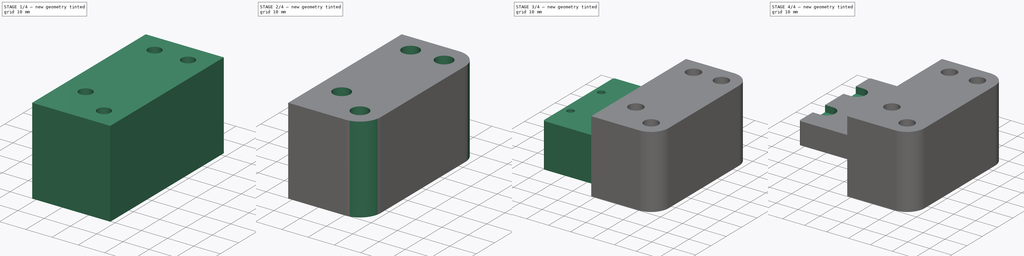
[diagram: build sequence overview — one tinted view per stage of 4, left to right]
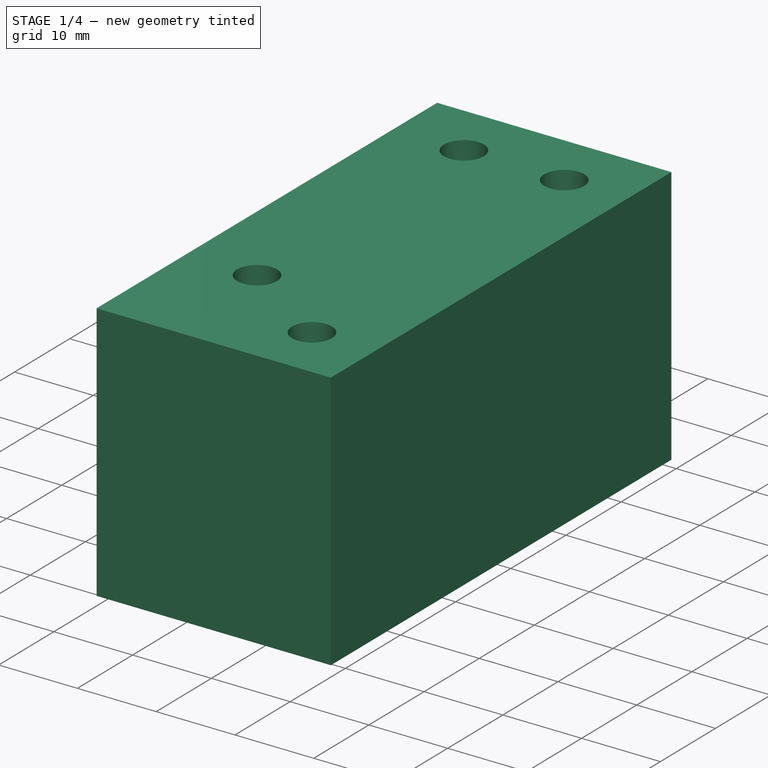
[diagram: stage 1 of 4 — iso view after this stage's code; geometry added in this stage tinted green]
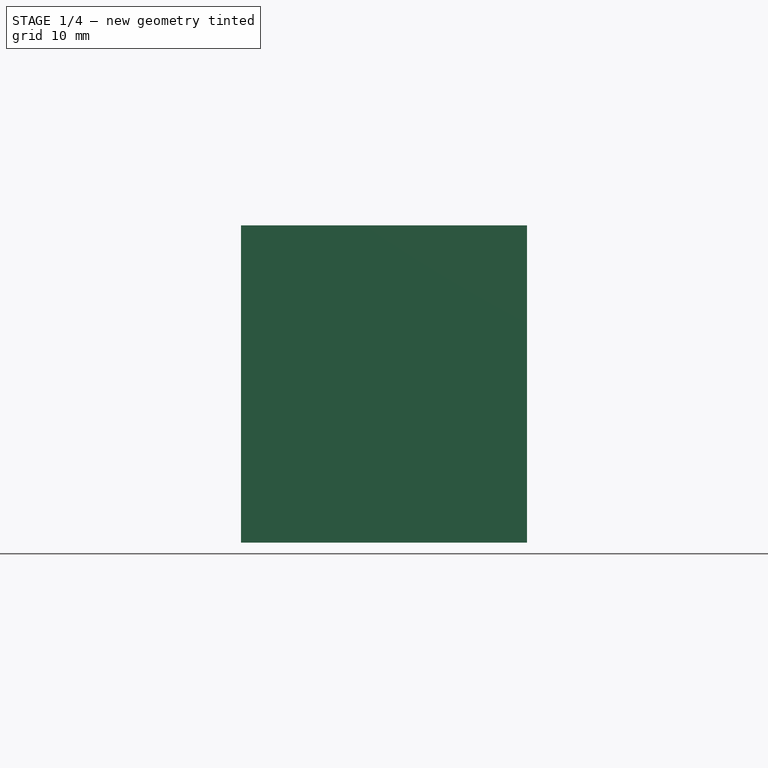
[diagram: stage 1 of 4 — front view after this stage's code; geometry added in this stage tinted green]
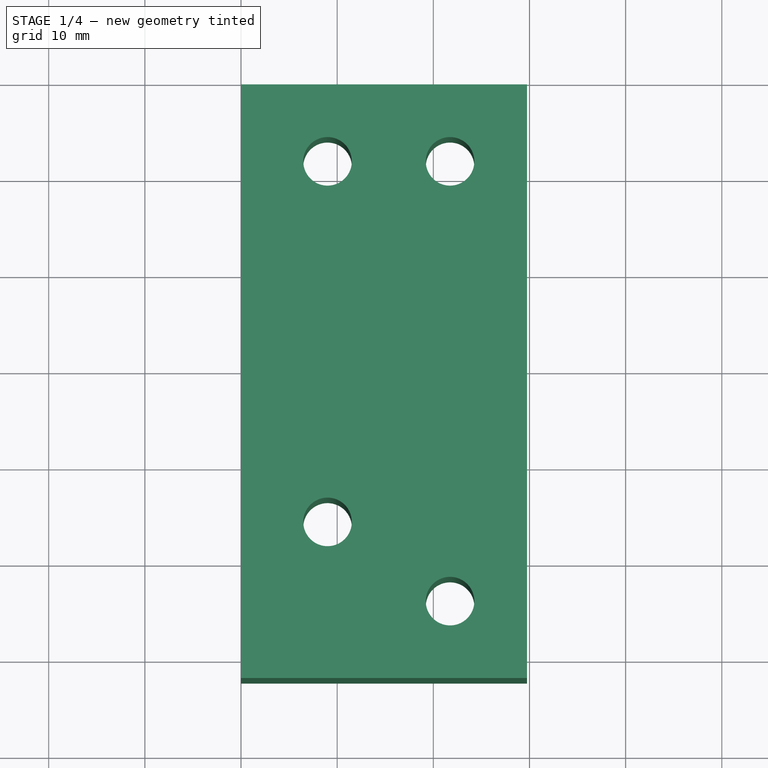
[diagram: stage 1 of 4 — top view after this stage's code; geometry added in this stage tinted green]
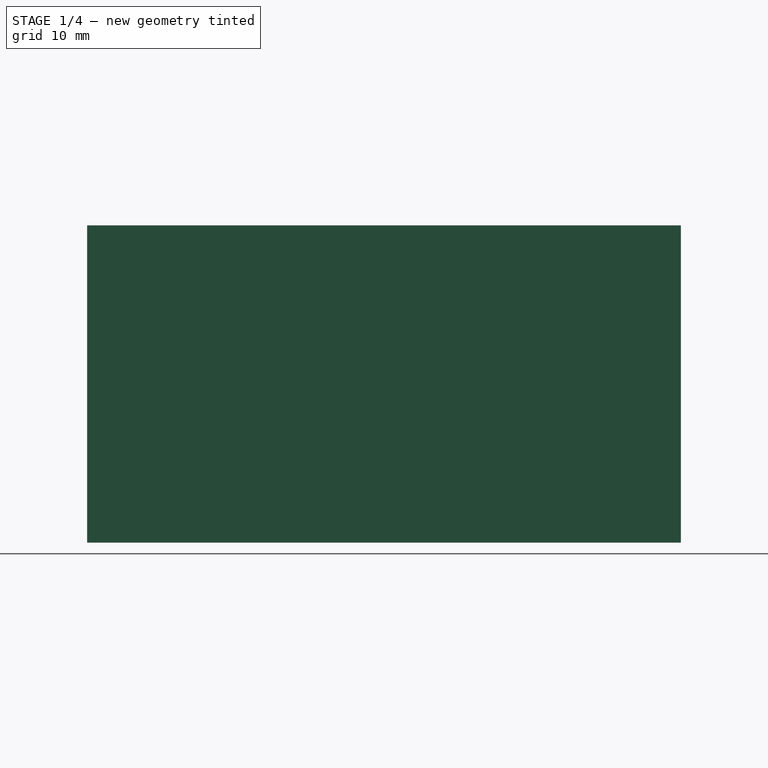
[diagram: stage 1 of 4 — right view after this stage's code; geometry added in this stage tinted green]
FCSTD DOCUMENT  (FreeCAD 0.19R24291 (Git))
Label: new-y-carrier-base
License: Other
LicenseURL: GPL3
objects: Sketcher::SketchObject×7, PartDesign::Pocket×5, PartDesign::Pad×2, PartDesign::Fillet×2, PartDesign::Body×2, Spreadsheet::Sheet×1
note: 27 computed .brp shape members not serialized (recipe doc carries the construction recipe); baked Part::Feature solids carry a one-line shape summary decoded from their .brp

FEATURE [PartDesign::Body] Body  label="block-mount-12-template"
  Group = -> [Sketch,Pad,Fillet,Sketch001,Pocket,Sketch002,Pocket001,Sketch003,Pocket002]
  Origin = -> Origin
  Placement = pos=(0,0,13) rot=(0,0,1;0rad)
  Tip = -> Pocket002
FEATURE [Sketcher::SketchObject] Sketch004
  FullyConstrained = true
  MapMode = 5
  Support = -> [XY_Plane001]
  expr: Constraints[11] = <<params>>.base_x_offset
  expr: Constraints[10] = <<params>>.base_y_offset
  expr: Constraints[8] = <<params>>.base_size_y
  expr: Constraints[9] = <<params>>.base_size_x
  sketch-geometry (4):
    g0: LineSegment StartX=0 StartY=29.5 StartZ=0 EndX=29.74 EndY=29.5 EndZ=0
    g1: LineSegment StartX=29.74 StartY=29.5 StartZ=0 EndX=29.74 EndY=-32.24 EndZ=0
    g2: LineSegment StartX=29.74 StartY=-32.24 StartZ=0 EndX=0 EndY=-32.24 EndZ=0
    g3: LineSegment StartX=0 StartY=-32.24 StartZ=0 EndX=0 EndY=29.5 EndZ=0
  constraints (12):
    c: Coincident(g0,g1)
    c: Coincident(g1,g2)
    c: Coincident(g2,g3)
    c: Coincident(g3,g0)
    c: Horizontal(g0)
    c: Horizontal(g2)
    c: Vertical(g1)
    c: Vertical(g3)
    c: DistanceY(g1,g1) = 61.74
    c: DistanceX(g0,g0) = 29.74
    c: DistanceY(g2,g-1) = 32.24
    c: DistanceX(g-1,g2) = 0
FEATURE [PartDesign::Pad] Pad001
  Direction = (1,1,1)
  Length = 33
  Length2 = 100
  Profile = -> Sketch004
  Type = 0
FEATURE [Sketcher::SketchObject] Sketch005
  FullyConstrained = true
  MapMode = 5
  Placement = pos=(0,0,33) rot=(0,0,1;0rad)
  Support = -> [Pad001]
  expr: Constraints[11] = <<params>>.back_x_offset
  expr: Constraints[1] = <<params>>.m5_hole_small
  expr: Constraints[7] = <<params>>.m5_hole_small
  expr: Constraints[0] = <<params>>.m5_hole_small
  expr: Constraints[6] = <<params>>.m5_hole_small
  expr: Constraints[9] = <<params>>.front_x_offset
  expr: Constraints[8] = <<params>>.back_y_offset
  expr: Constraints[3] = <<params>>.front_x_offset
  expr: Constraints[4] = <<params>>.back_y_offset
  expr: Constraints[10] = <<params>>.body_screw_y_offset
  expr: Constraints[5] = <<params>>.front_y_offset
  expr: Constraints[2] = <<params>>.back_x_offset
  sketch-geometry (4):
    g0: Circle CenterX=9 CenterY=21.5 CenterZ=0 NormalX=0 NormalY=0 NormalZ=1 AngleXU=0 Radius=2.525
    g1: Circle CenterX=21.74 CenterY=-24.24 CenterZ=0 NormalX=0 NormalY=0 NormalZ=1 AngleXU=0 Radius=2.525
    g2: Circle CenterX=21.74 CenterY=21.5 CenterZ=0 NormalX=0 NormalY=0 NormalZ=1 AngleXU=0 Radius=2.525
    g3: Circle CenterX=9 CenterY=-16 CenterZ=0 NormalX=0 NormalY=0 NormalZ=1 AngleXU=0 Radius=2.525
  constraints (12):
    c: Radius(g0) = 2.525
    c: Radius(g1) = 2.525
    c: DistanceX(g-1,g0) = 9
    c: DistanceX(g-1,g1) = 21.74
    c: DistanceY(g-1,g0) = 21.5
    c: DistanceY(g1,g-1) = 24.24
    c: Radius(g2) = 2.525
    c: Radius(g3) = 2.525
    c: DistanceY(g-1,g2) = 21.5
    c: DistanceX(g-1,g2) = 21.74
    c: DistanceY(g3,g-1) = 16
    c: DistanceX(g-1,g3) = 9
FEATURE [PartDesign::Pocket] Pocket003
  BaseFeature = -> Pad001
  Length = 5
  Length2 = 100
  Profile = -> Sketch005
  Type = 1
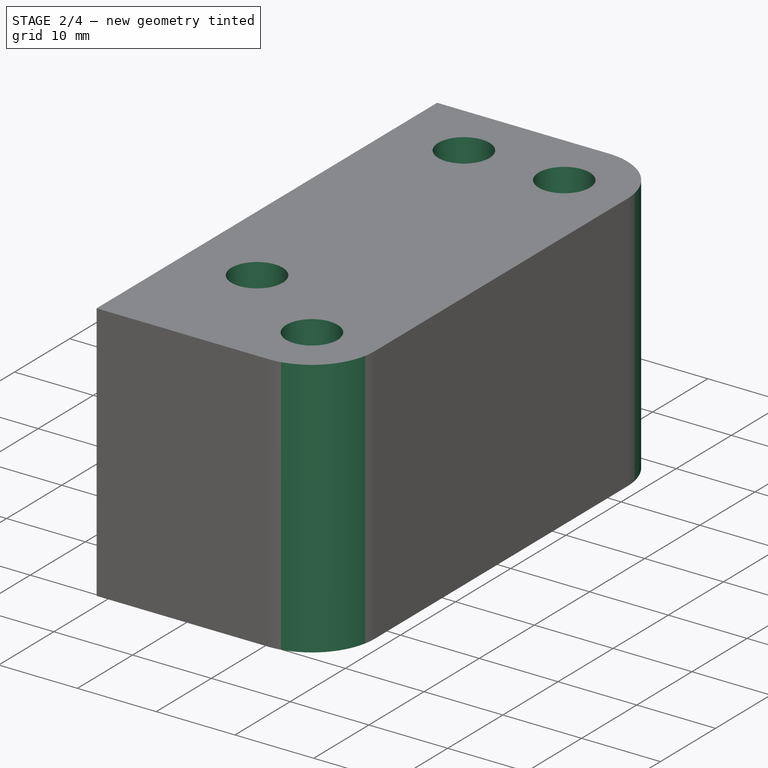
[diagram: stage 2 of 4 — iso view after this stage's code; geometry added in this stage tinted green]
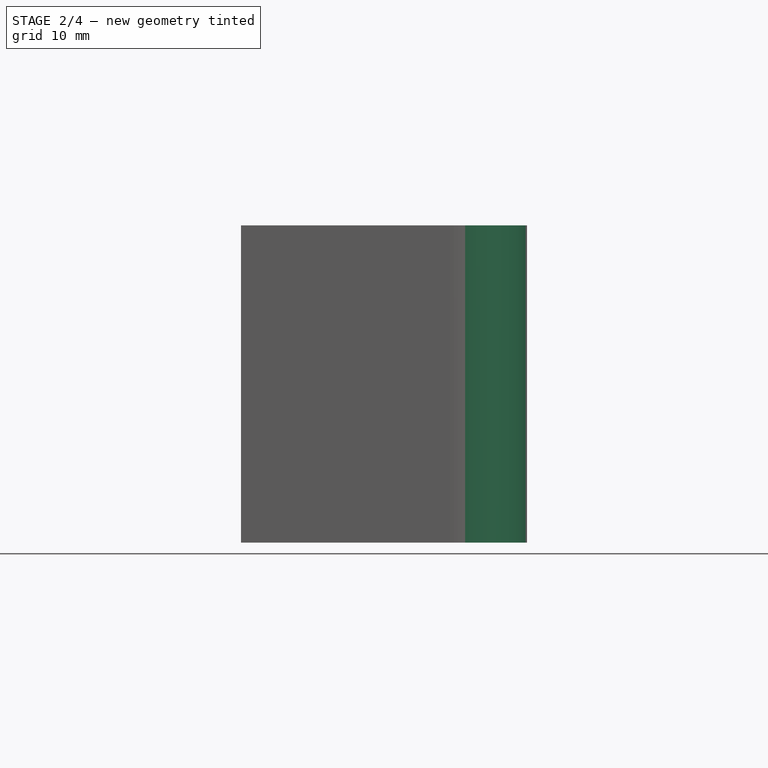
[diagram: stage 2 of 4 — front view after this stage's code; geometry added in this stage tinted green]
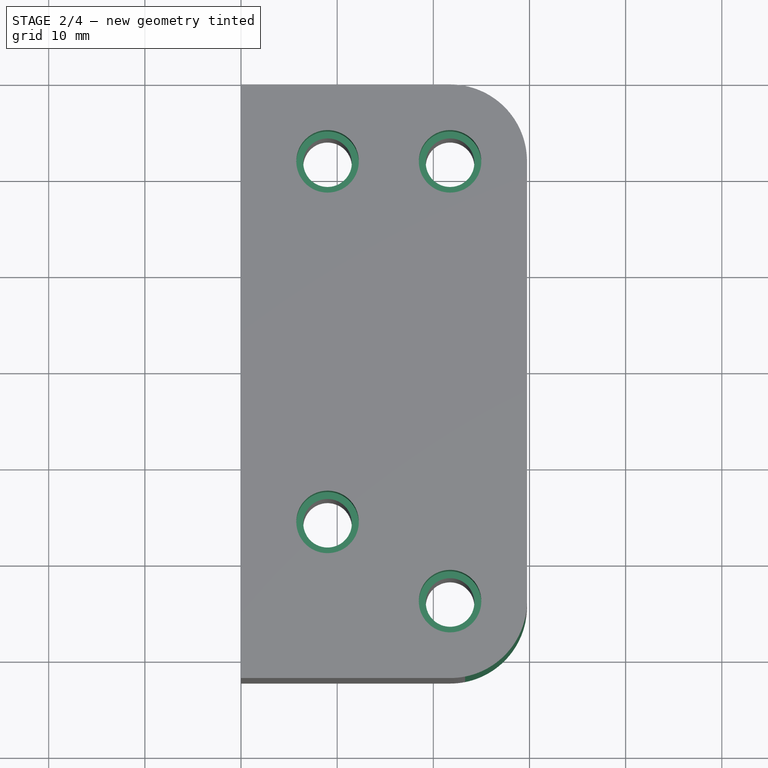
[diagram: stage 2 of 4 — top view after this stage's code; geometry added in this stage tinted green]
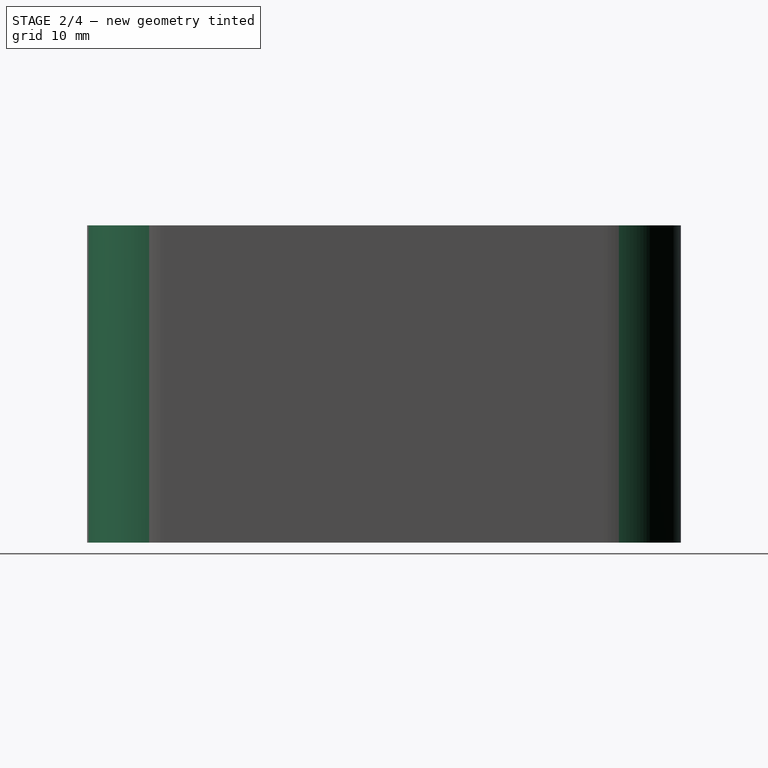
[diagram: stage 2 of 4 — right view after this stage's code; geometry added in this stage tinted green]
FEATURE [Spreadsheet::Sheet] Spreadsheet  label="params"
  cells = A1=Front idler x offset; B1(front_x_offset)=21.74; A2=Front idler y offset; B2(front_y_offset)=24.24; A3=Back idler x offset; B3(back_x_offset)=9; A4=Back idelr y offset; B4(back_y_offset)=21.5; A5=Base size x; B5(base_size_x)=29.74; A6=Base size Y; B6(base_size_y)=61.74; A7=Base x offset; B7(base_x_offset)=0; A8=Base y offset; B8(base_y_offset)=32.24; A9=M5 hole large; B9(m5_hole_large)=2.6; A10=M5 hole small; B10(m5_hole_small)=2.525; A11=M3 hole large; B11(m3_hole_large)=1.6; A12=M3 hole small; B12(m3_hole_small)=1.45; A13=M5 insert; B13(m5_insert)=3.25; A14=M3 insert; B14(m3_insert)=1.9; A15=idler clearance; B15(idler_clearance)=8; A16=body screw y offset; B16(body_screw_y_offset)=16
FEATURE [Sketcher::SketchObject] Sketch006
  FullyConstrained = true
  MapMode = 5
  Placement = pos=(0,0,33) rot=(0,0,1;0rad)
  Support = -> [Pocket003]
  expr: Constraints[11] = <<params>>.body_screw_y_offset
  expr: Constraints[9] = <<params>>.back_y_offset
  expr: Constraints[8] = <<params>>.back_y_offset
  expr: Constraints[7] = <<params>>.front_x_offset
  expr: Constraints[6] = <<params>>.front_x_offset
  expr: Constraints[4] = <<params>>.back_x_offset
  expr: Constraints[3] = <<params>>.m5_insert
  expr: Constraints[10] = <<params>>.front_y_offset
  expr: Constraints[5] = <<params>>.back_x_offset
  expr: Constraints[2] = <<params>>.m5_insert
  expr: Constraints[1] = <<params>>.m5_insert
  expr: Constraints[0] = <<params>>.m5_insert
  sketch-geometry (4):
    g0: Circle CenterX=21.74 CenterY=21.5 CenterZ=0 NormalX=0 NormalY=0 NormalZ=1 AngleXU=0 Radius=3.25
    g1: Circle CenterX=9 CenterY=21.5 CenterZ=0 NormalX=0 NormalY=0 NormalZ=1 AngleXU=0 Radius=3.25
    g2: Circle CenterX=9 CenterY=-16 CenterZ=0 NormalX=0 NormalY=0 NormalZ=1 AngleXU=0 Radius=3.25
    g3: Circle CenterX=21.74 CenterY=-24.24 CenterZ=0 NormalX=0 NormalY=0 NormalZ=1 AngleXU=0 Radius=3.25
  constraints (12):
    c: Radius(g1) = 3.25
    c: Radius(g0) = 3.25
    c: Radius(g2) = 3.25
    c: Radius(g3) = 3.25
    c: DistanceX(g-1,g1) = 9
    c: DistanceX(g-1,g2) = 9
    c: DistanceX(g-1,g3) = 21.74
    c: DistanceX(g-1,g0) = 21.74
    c: DistanceY(g-1,g1) = 21.5
    c: DistanceY(g-1,g0) = 21.5
    c: DistanceY(g3,g-1) = 24.24
    c: DistanceY(g2,g-1) = 16
FEATURE [PartDesign::Pocket] Pocket004
  BaseFeature = -> Pocket003
  Length = 8
  Length2 = 100
  Profile = -> Sketch006
  Type = 0
FEATURE [PartDesign::Fillet] Fillet001
  Base = -> Pocket004 [Edge8,Edge2]
  BaseFeature = -> Pocket004
  Radius = 8
  SupportTransform = false
  expr: Radius = <<params>>.idler_clearance
FEATURE [PartDesign::Body] Body001  label="body-template"
  Group = -> [Sketch004,Pad001,Sketch005,Pocket003,Sketch006,Pocket004,Fillet001]
  Origin = -> Origin001
  Tip = -> Fillet001
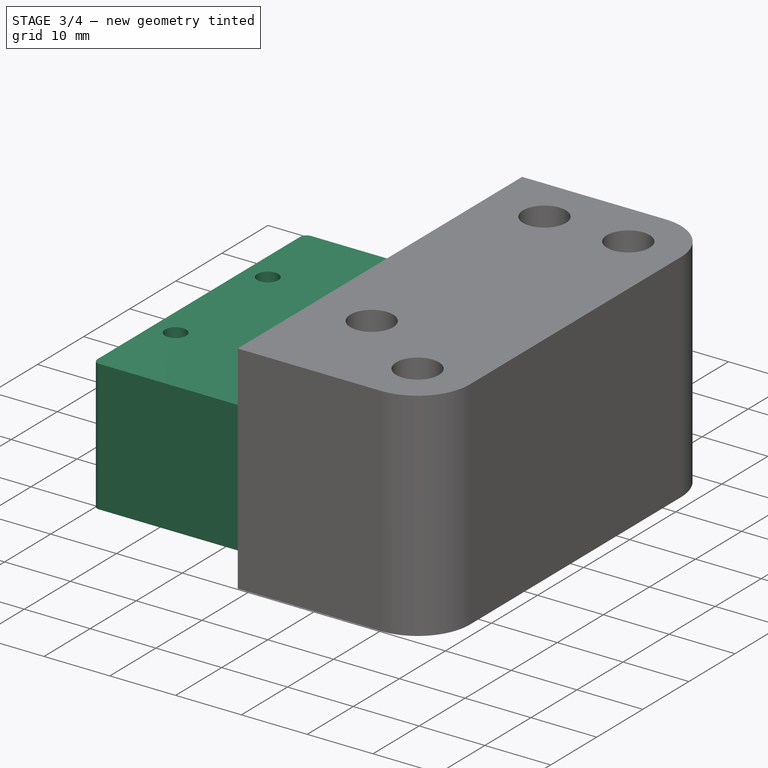
[diagram: stage 3 of 4 — iso view after this stage's code; geometry added in this stage tinted green]
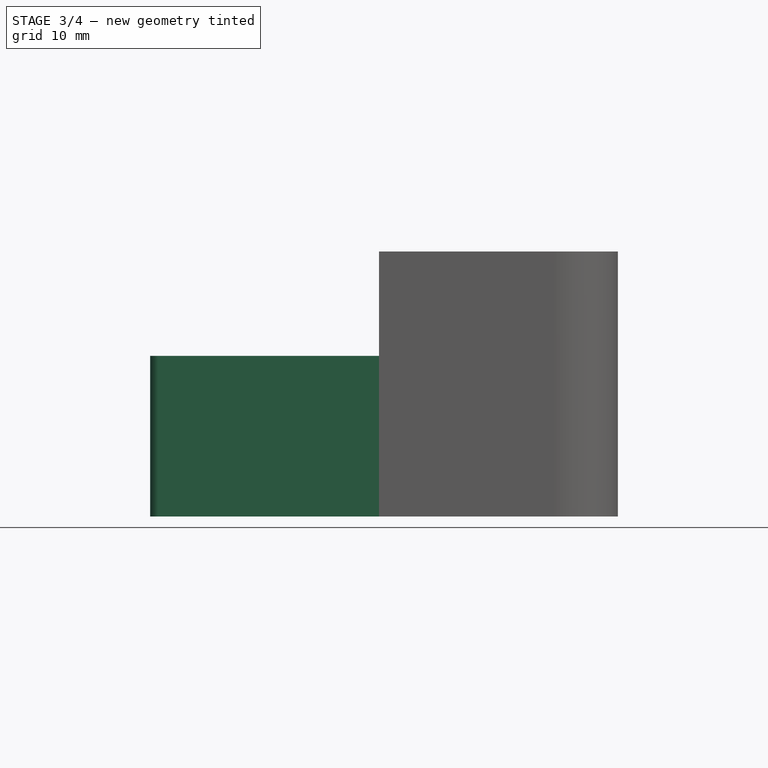
[diagram: stage 3 of 4 — front view after this stage's code; geometry added in this stage tinted green]
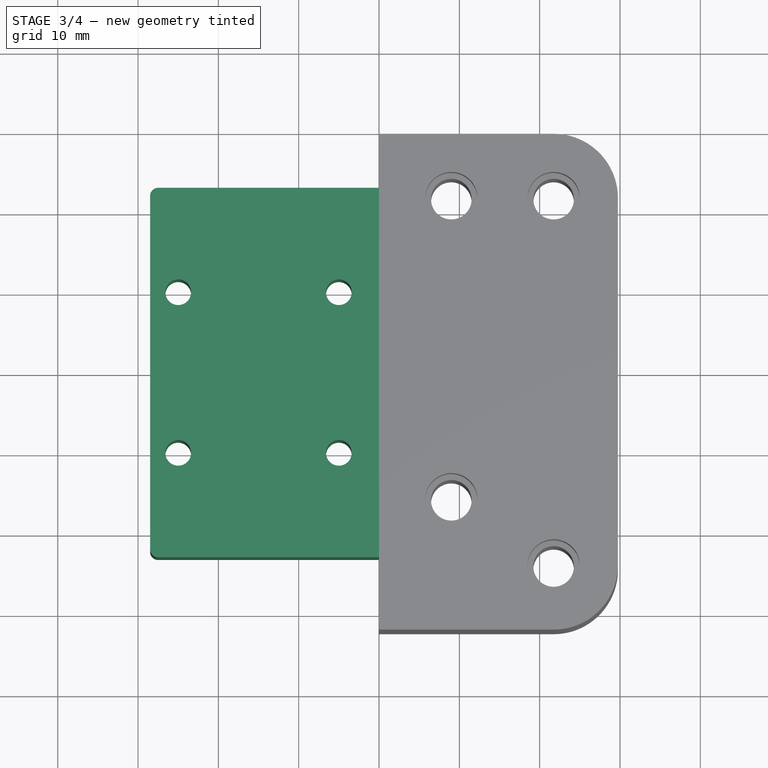
[diagram: stage 3 of 4 — top view after this stage's code; geometry added in this stage tinted green]
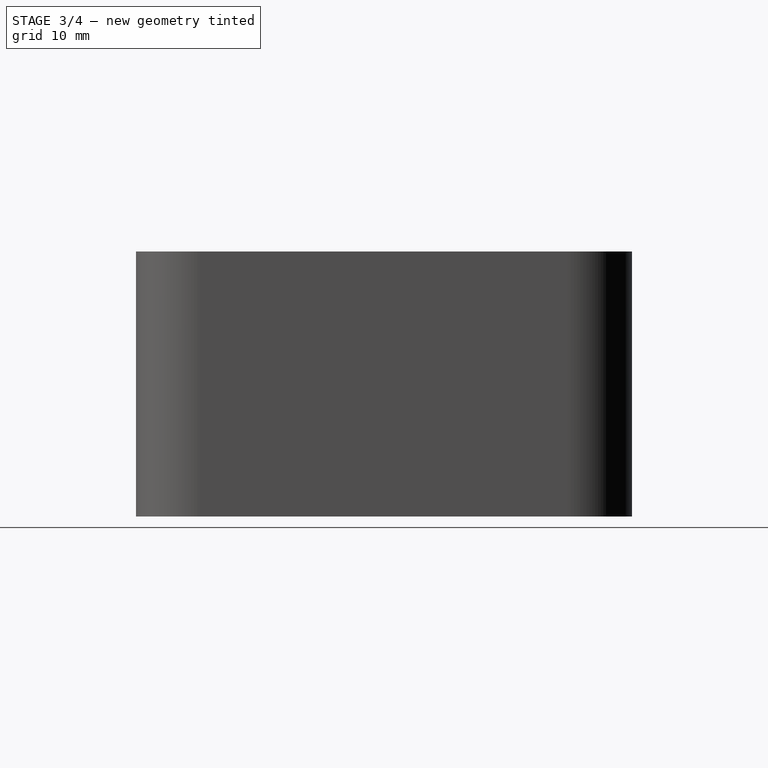
[diagram: stage 3 of 4 — right view after this stage's code; geometry added in this stage tinted green]
FEATURE [Sketcher::SketchObject] Sketch
  FullyConstrained = true
  MapMode = 5
  Support = -> [XY_Plane]
  sketch-geometry (5):
    g0: GeomPoint X=-15 Y=0 Z=0
    g1: LineSegment StartX=-28.5 StartY=23 StartZ=0 EndX=0 EndY=23 EndZ=0
    g2: LineSegment StartX=0 StartY=23 StartZ=0 EndX=0 EndY=-23 EndZ=0
    g3: LineSegment StartX=0 StartY=-23 StartZ=0 EndX=-28.5 EndY=-23 EndZ=0
    g4: LineSegment StartX=-28.5 StartY=-23 StartZ=0 EndX=-28.5 EndY=23 EndZ=0
  constraints (14):
    c: PointOnObject(g0,g-1)
    c: DistanceX(g0,g-1) = 15
    c: Coincident(g1,g2)
    c: Coincident(g2,g3)
    c: Coincident(g3,g4)
    c: Coincident(g4,g1)
    c: Horizontal(g1)
    c: Horizontal(g3)
    c: Vertical(g2)
    c: Vertical(g4)
    c: DistanceX(g1,g0) = 13.5
    c: DistanceY(g4,g4) = 46
    c: DistanceY(g0,g1) = 23
    c: DistanceX(g1,g1) = 28.5
FEATURE [PartDesign::Pad] Pad
  Direction = (1,1,1)
  Length = 20
  Length2 = 100
  Profile = -> Sketch
  Type = 0
FEATURE [PartDesign::Fillet] Fillet
  Base = -> Pad [Edge1,Edge8]
  BaseFeature = -> Pad
  Radius = 1
  SupportTransform = false
FEATURE [Sketcher::SketchObject] Sketch001
  FullyConstrained = true
  MapMode = 5
  Placement = pos=(0,0,20) rot=(0,0,1;0rad)
  Support = -> [Fillet]
  sketch-geometry (5):
    g0: GeomPoint X=-15 Y=0 Z=0
    g1: Circle CenterX=-25 CenterY=10 CenterZ=0 NormalX=0 NormalY=0 NormalZ=1 AngleXU=0 Radius=1.6
    g2: Circle CenterX=-5 CenterY=10 CenterZ=0 NormalX=0 NormalY=0 NormalZ=1 AngleXU=0 Radius=1.6
    g3: Circle CenterX=-25 CenterY=-10 CenterZ=0 NormalX=0 NormalY=0 NormalZ=1 AngleXU=0 Radius=1.6
    g4: Circle CenterX=-5 CenterY=-10 CenterZ=0 NormalX=0 NormalY=0 NormalZ=1 AngleXU=0 Radius=1.6
  constraints (14):
    c: DistanceX(g0,g-1) = 15
    c: DistanceY(g-1,g0) = 0
    c: DistanceY(g4,g2) = 20
    c: DistanceY(g3,g1) = 20
    c: DistanceX(g2,g4) = 0
    c: DistanceX(g1,g3) = 0
    c: DistanceY(g0,g2) = 10
    c: DistanceY(g0,g1) = 10
    c: DistanceX(g1,g0) = 10
    c: DistanceX(g0,g2) = 10
    c: Radius(g1) = 1.6
    c: Radius(g2) = 1.6
    c: Radius(g3) = 1.6
    c: Radius(g4) = 1.6
FEATURE [PartDesign::Pocket] Pocket
  BaseFeature = -> Fillet
  Length = 5
  Length2 = 100
  Profile = -> Sketch001
  Type = 1
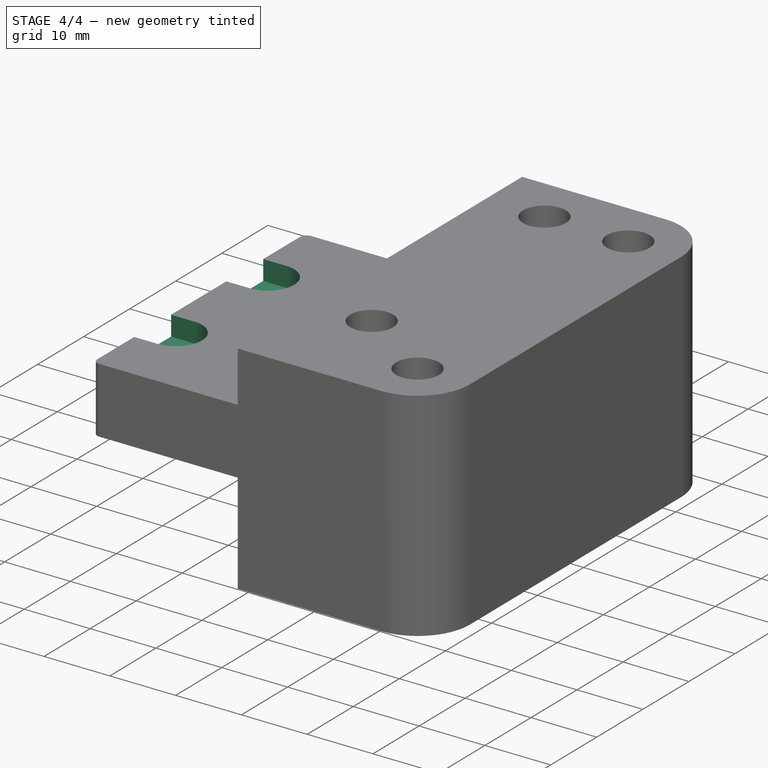
[diagram: stage 4 of 4 — iso view after this stage's code; geometry added in this stage tinted green]
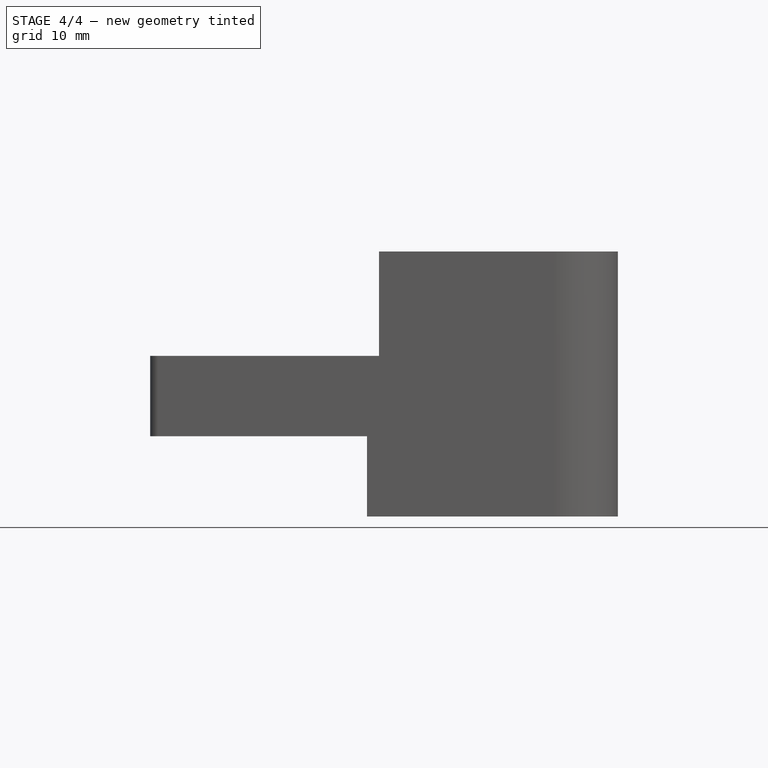
[diagram: stage 4 of 4 — front view after this stage's code; geometry added in this stage tinted green]
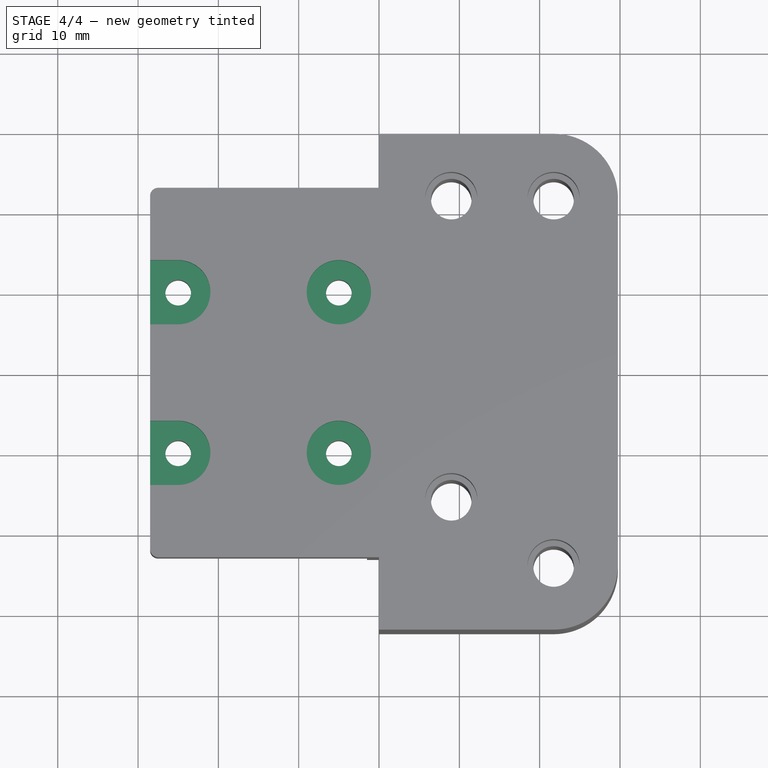
[diagram: stage 4 of 4 — top view after this stage's code; geometry added in this stage tinted green]
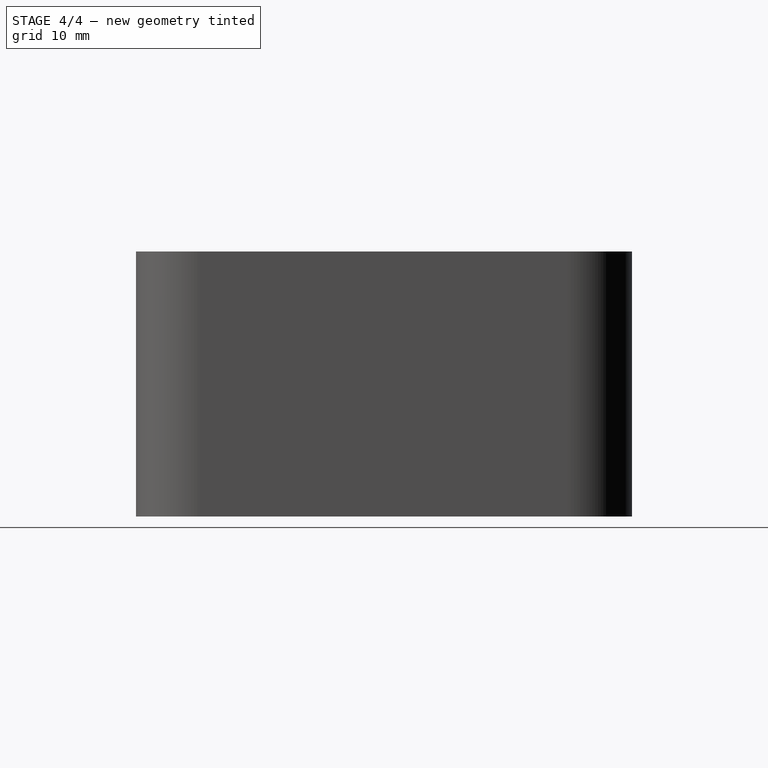
[diagram: stage 4 of 4 — right view after this stage's code; geometry added in this stage tinted green]
FEATURE [Sketcher::SketchObject] Sketch002
  FullyConstrained = true
  MapMode = 5
  Placement = pos=(0,0,0) rot=(1,0,0;3.14159rad)
  Support = -> [Pocket]
  sketch-geometry (4):
    g0: LineSegment StartX=-1.5 StartY=23 StartZ=0 EndX=-28.5 EndY=23 EndZ=0
    g1: LineSegment StartX=-28.5 StartY=23 StartZ=0 EndX=-28.5 EndY=-23 EndZ=0
    g2: LineSegment StartX=-28.5 StartY=-23 StartZ=0 EndX=-1.5 EndY=-23 EndZ=0
    g3: LineSegment StartX=-1.5 StartY=-23 StartZ=0 EndX=-1.5 EndY=23 EndZ=0
  constraints (12):
    c: Coincident(g0,g1)
    c: Coincident(g1,g2)
    c: Coincident(g2,g3)
    c: Coincident(g3,g0)
    c: Horizontal(g0)
    c: Horizontal(g2)
    c: Vertical(g1)
    c: Vertical(g3)
    c: DistanceY(g3,g3) = 46
    c: DistanceY(g-1,g0) = 23
    c: DistanceX(g0,g-1) = 1.5
    c: DistanceX(g0,g0) = 27
FEATURE [PartDesign::Pocket] Pocket001
  BaseFeature = -> Pocket
  Length = 10
  Length2 = 100
  Profile = -> Sketch002
  Type = 0
FEATURE [Sketcher::SketchObject] Sketch003
  FullyConstrained = true
  MapMode = 5
  Placement = pos=(0,0,20) rot=(0,0,1;0rad)
  Support = -> [Pocket001]
  sketch-geometry (11):
    g0: Circle CenterX=-5 CenterY=10 CenterZ=0 NormalX=0 NormalY=0 NormalZ=1 AngleXU=0 Radius=4
    g1: Circle CenterX=-5 CenterY=-10 CenterZ=0 NormalX=0 NormalY=0 NormalZ=1 AngleXU=0 Radius=4
    g2: ArcOfCircle CenterX=-25 CenterY=-10 CenterZ=0 NormalX=0 NormalY=0 NormalZ=1 AngleXU=0 Radius=4 StartAngle=4.71239 EndAngle=7.85398
    g3: ArcOfCircle CenterX=-25 CenterY=10 CenterZ=0 NormalX=0 NormalY=0 NormalZ=1 AngleXU=0 Radius=4 StartAngle=4.71239 EndAngle=7.85398
    g4: GeomPoint X=-15 Y=0 Z=0
    g5: LineSegment StartX=-25 StartY=14 StartZ=0 EndX=-28.5 EndY=14 EndZ=0
    g6: LineSegment StartX=-28.5 StartY=14 StartZ=0 EndX=-28.5 EndY=6 EndZ=0
    g7: LineSegment StartX=-28.5 StartY=6 StartZ=0 EndX=-25 EndY=6 EndZ=0
    g8: LineSegment StartX=-25 StartY=-6 StartZ=0 EndX=-28.5 EndY=-6 EndZ=0
    g9: LineSegment StartX=-28.5 StartY=-6 StartZ=0 EndX=-28.5 EndY=-14 EndZ=0
    g10: LineSegment StartX=-28.5 StartY=-14 StartZ=0 EndX=-25 EndY=-14 EndZ=0
  constraints (32):
    c: DistanceY(g-1,g4) = 0
    c: DistanceX(g4,g-1) = 15
    c: DistanceX(g4,g0) = 10
    c: DistanceX(g3,g4) = 10
    c: DistanceX(g2,g4) = 10
    c: DistanceX(g4,g1) = 10
    c: DistanceY(g4,g3) = 10
    c: DistanceY(g2,g4) = 10
    c: DistanceY(g4,g0) = 10
    c: DistanceY(g1,g4) = 10
    c: Radius(g0) = 4
    c: Radius(g1) = 4
    c: Radius(g3) = 4
    c: Radius(g2) = 4
    c: DistanceX(g2,g2) = 0
    c: DistanceX(g3,g3) = 0
    c: DistanceX(g3,g4) = 10
    c: DistanceX(g2,g4) = 10
    c: Tangent(g3,g5) = -1.5708
    c: Coincident(g5,g6)
    c: Vertical(g6)
    c: Coincident(g6,g7)
    c: Coincident(g7,g3)
    c: Horizontal(g7)
    c: Tangent(g2,g8) = -1.5708
    c: Coincident(g8,g9)
    c: Vertical(g9)
    c: Coincident(g9,g10)
    c: Coincident(g10,g2)
    c: Horizontal(g10)
    c: DistanceX(g8,g8) = 3.5
    c: DistanceX(g7,g7) = 3.5
FEATURE [PartDesign::Pocket] Pocket002
  BaseFeature = -> Pocket001
  Length = 3
  Length2 = 100
  Profile = -> Sketch003
  Type = 0
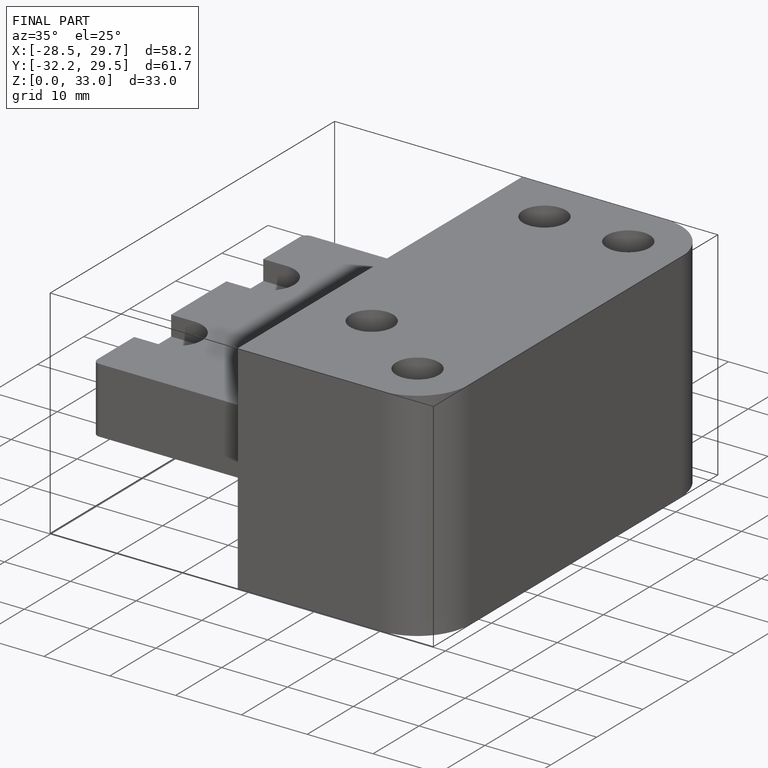
[diagram: finished part — iso view with bounding-box wireframe]
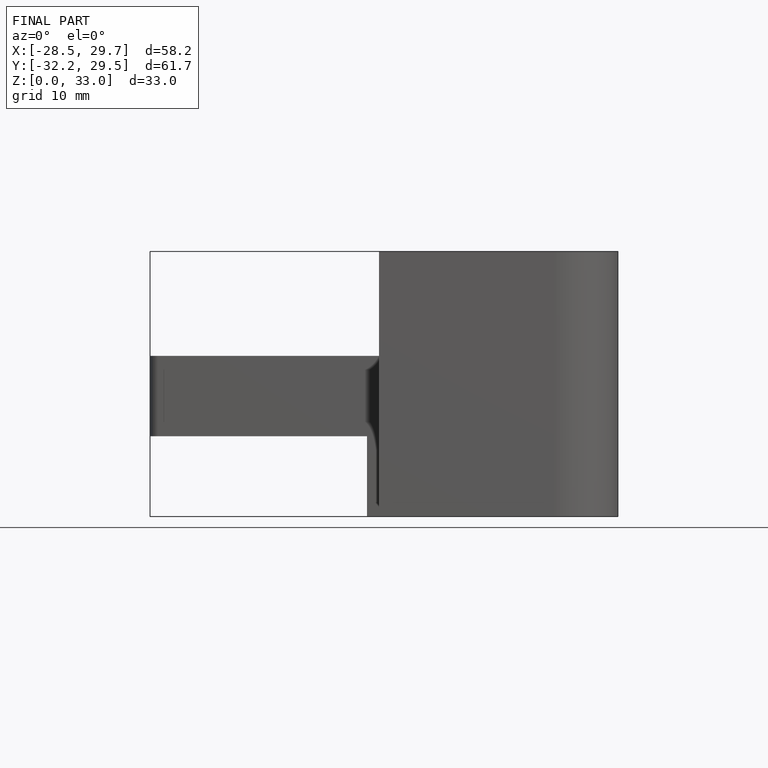
[diagram: finished part — front view with bounding-box wireframe]
